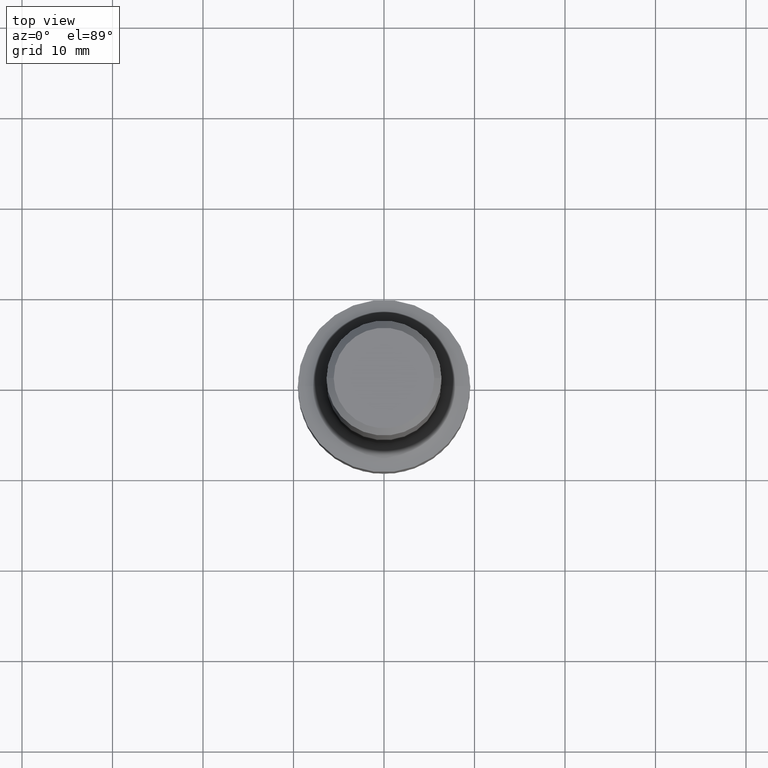
[diagram: clean part render]
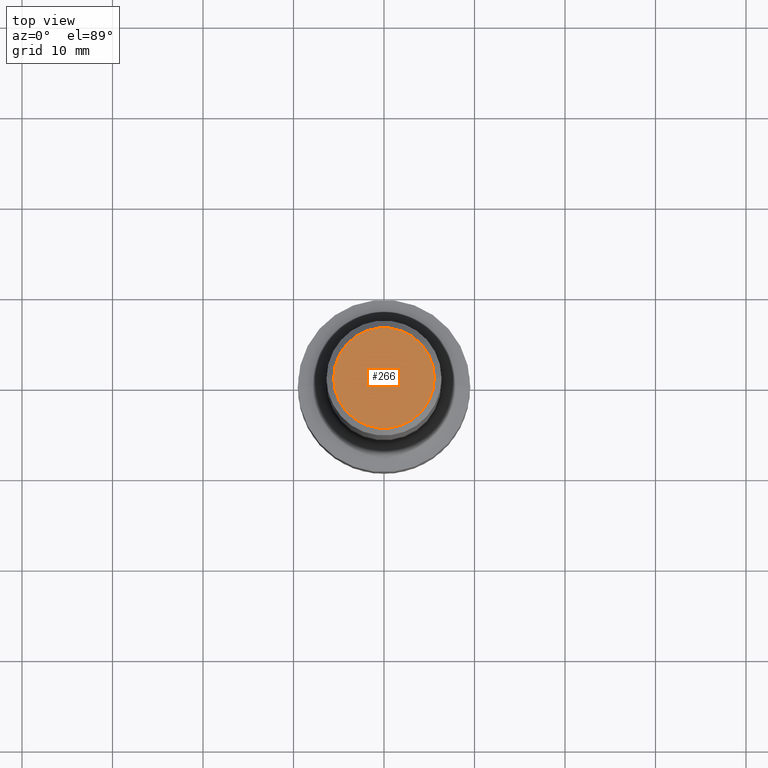
[diagram: same view with one face highlighted and labeled with its STEP entity id]
A machine part, top view. The second image highlights one B-rep face of the part: STEP entity #266.
In plain terms, the highlighted planar face has unit normal (0, -0, -1).
Its self-contained STEP definition (entity closure, byte-faithful):
#50 = DIRECTION ( 'NONE',  ( -2.445468806185136597E-29, 3.491481338843145583E-15, 1.000000000000000000 ) ) ;
#68 = AXIS2_PLACEMENT_3D ( 'NONE', #160, #122, #446 ) ;
#95 = CIRCLE ( 'NONE', #200, 0.2187999999999999945 ) ;
#102 = PLANE ( 'NONE',  #443 ) ;
#106 = DIRECTION ( 'NONE',  ( -1.000000000000000000, 6.982962677686265922E-15, -4.876176775795935793E-29 ) ) ;
#122 = DIRECTION ( 'NONE',  ( -2.445468806185136597E-29, 3.491481338843145583E-15, 1.000000000000000000 ) ) ;
#146 = EDGE_CURVE ( 'NONE', #492, #168, #95, .T. ) ;
#158 = ORIENTED_EDGE ( 'NONE', *, *, #146, .T. ) ;
#160 = CARTESIAN_POINT ( 'NONE',  ( -1.871772216193327269E-46, 2.672394653685605698E-32, 7.654042494670949841E-18 ) ) ;
#168 = VERTEX_POINT ( 'NONE', #199 ) ;
#170 = CARTESIAN_POINT ( 'NONE',  ( 1.527872233877754946E-15, 0.2187999999999999945, -7.601090956915447608E-16 ) ) ;
#179 = FACE_OUTER_BOUND ( 'NONE', #468, .T. ) ;
#181 = EDGE_CURVE ( 'NONE', #168, #492, #437, .T. ) ;
#199 = CARTESIAN_POINT ( 'NONE',  ( 0.2187999999999999945, -1.662567839563600480E-15, 7.654042494682104827E-18 ) ) ;
#200 = AXIS2_PLACEMENT_3D ( 'NONE', #418, #50, #254 ) ;
#227 = DIRECTION ( 'NONE',  ( 2.438088387897960049E-29, -3.491481338843145188E-15, -1.000000000000000000 ) ) ;
#254 = DIRECTION ( 'NONE',  ( 1.000000000000000000, -6.982962677686266711E-15, 4.876319244907601817E-29 ) ) ;
#266 = ADVANCED_FACE ( 'NONE', ( #179 ), #102, .F. ) ;
#369 = CARTESIAN_POINT ( 'NONE',  ( -0.2187999999999999945, 1.582339342763707436E-15, 7.654042494660075270E-18 ) ) ;
#418 = CARTESIAN_POINT ( 'NONE',  ( -1.871772216193327269E-46, 2.672394653685605698E-32, 7.654042494670949841E-18 ) ) ;
#427 = ORIENTED_EDGE ( 'NONE', *, *, #181, .T. ) ;
#437 = CIRCLE ( 'NONE', #68, 0.2187999999999999945 ) ;
#443 = AXIS2_PLACEMENT_3D ( 'NONE', #170, #227, #106 ) ;
#446 = DIRECTION ( 'NONE',  ( 1.000000000000000000, -6.982962677686266711E-15, 4.876319244907601817E-29 ) ) ;
#468 = EDGE_LOOP ( 'NONE', ( #158, #427 ) ) ;
#492 = VERTEX_POINT ( 'NONE', #369 ) ;